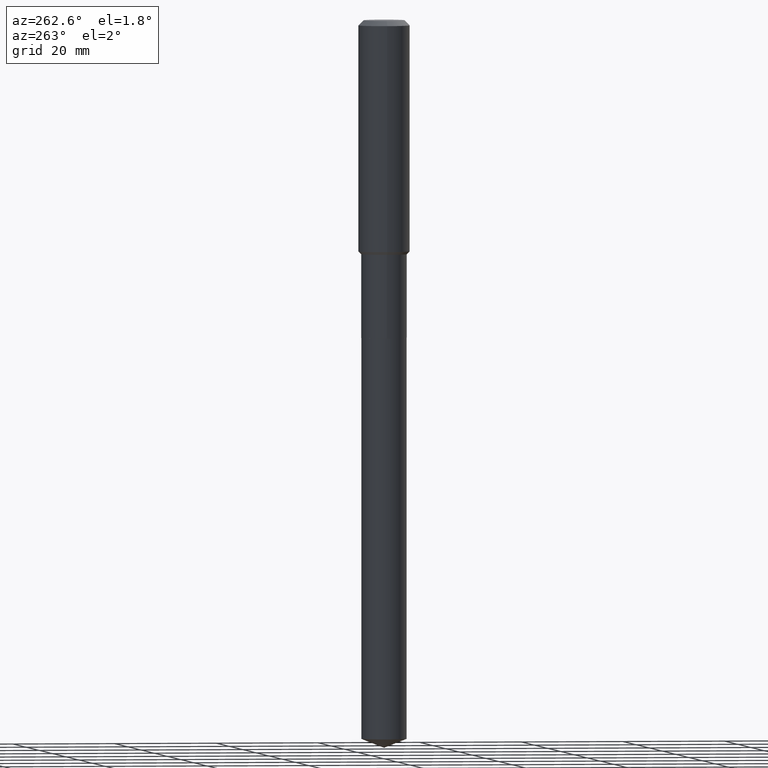
[diagram: clean part render]
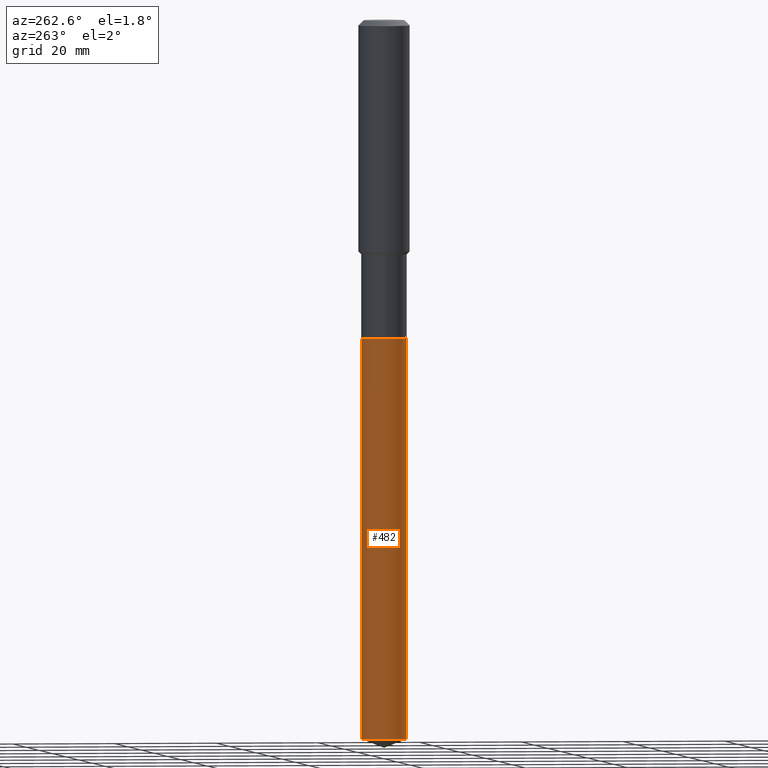
[diagram: same view with one face highlighted and labeled with its STEP entity id]
A machine part, auxiliary view. The second image highlights one B-rep face of the part: STEP entity #482.
In plain terms, the highlighted cylindrical surface (edge-blend (fillet) strip) has radius 4.4501 mm, axis along (-0, 0, 1).
Its self-contained STEP definition (entity closure, byte-faithful):
#1 = CARTESIAN_POINT ( 'NONE',  ( 1.244870873051829791E-15, 0.1751999999999806212, -5.521486884672262896 ) ) ;
#3 = VERTEX_POINT ( 'NONE', #216 ) ;
#15 = CIRCLE ( 'NONE', #418, 0.1751999999999999946 ) ;
#19 = CYLINDRICAL_SURFACE ( 'NONE', #156, 0.1751999999999999946 ) ;
#36 = EDGE_CURVE ( 'NONE', #469, #385, #15, .T. ) ;
#38 = ORIENTED_EDGE ( 'NONE', *, *, #415, .F. ) ;
#46 = CARTESIAN_POINT ( 'NONE',  ( 1.244870873051754849E-15, 0.1751999999999914459, -2.440899999999999626 ) ) ;
#56 = CARTESIAN_POINT ( 'NONE',  ( 5.969144809017297917E-29, -8.522356799982231388E-15, -2.440899999999999181 ) ) ;
#68 = LINE ( 'NONE', #109, #78 ) ;
#75 = EDGE_LOOP ( 'NONE', ( #38, #164, #452, #299 ) ) ;
#76 = LINE ( 'NONE', #46, #392 ) ;
#78 = VECTOR ( 'NONE', #330, 39.37007874015748143 ) ;
#84 = DIRECTION ( 'NONE',  ( -2.445428369358333970E-29, 3.491539246680648506E-15, 1.000000000000000000 ) ) ;
#109 = CARTESIAN_POINT ( 'NONE',  ( -1.223415061130574121E-15, -0.1752000000000085156, -2.440899999999998737 ) ) ;
#111 = DIRECTION ( 'NONE',  ( -2.445428369358333970E-29, 3.491539246680648506E-15, 1.000000000000000000 ) ) ;
#156 = AXIS2_PLACEMENT_3D ( 'NONE', #56, #287, #319 ) ;
#164 = ORIENTED_EDGE ( 'NONE', *, *, #380, .T. ) ;
#197 = AXIS2_PLACEMENT_3D ( 'NONE', #304, #84, #238 ) ;
#216 = CARTESIAN_POINT ( 'NONE',  ( -1.223415061130498390E-15, -0.1752000000000192015, -5.521486884672260231 ) ) ;
#230 = CARTESIAN_POINT ( 'NONE',  ( 1.244870873051830580E-15, 0.1751999999999914459, -2.440899999999999626 ) ) ;
#238 = DIRECTION ( 'NONE',  ( -6.982962677686265133E-15, -1.000000000000000000, 6.237095875945806629E-15 ) ) ;
#241 = EDGE_CURVE ( 'NONE', #3, #385, #68, .T. ) ;
#244 = DIRECTION ( 'NONE',  ( -2.445428369358333970E-29, 3.491539246680648506E-15, 1.000000000000000000 ) ) ;
#287 = DIRECTION ( 'NONE',  ( -2.445428369358333970E-29, 3.491539246680648506E-15, 1.000000000000000000 ) ) ;
#299 = ORIENTED_EDGE ( 'NONE', *, *, #36, .F. ) ;
#304 = CARTESIAN_POINT ( 'NONE',  ( 1.350249937106805786E-28, -1.927834681062510951E-14, -5.521486884672262008 ) ) ;
#319 = DIRECTION ( 'NONE',  ( -6.982962677686265133E-15, -1.000000000000000000, 3.118547937972903315E-15 ) ) ;
#321 = VERTEX_POINT ( 'NONE', #1 ) ;
#330 = DIRECTION ( 'NONE',  ( -2.445428369358333970E-29, 3.491539246680648506E-15, 1.000000000000000000 ) ) ;
#332 = CIRCLE ( 'NONE', #197, 0.1751999999999999946 ) ;
#343 = CARTESIAN_POINT ( 'NONE',  ( -1.223415061130574121E-15, -0.1752000000000085156, -2.440899999999998737 ) ) ;
#380 = EDGE_CURVE ( 'NONE', #321, #3, #332, .T. ) ;
#384 = CARTESIAN_POINT ( 'NONE',  ( 5.969144809017297917E-29, -8.522356799982231388E-15, -2.440899999999999181 ) ) ;
#385 = VERTEX_POINT ( 'NONE', #343 ) ;
#387 = DIRECTION ( 'NONE',  ( -6.982962677686265133E-15, -1.000000000000000000, 3.118547937972903315E-15 ) ) ;
#388 = FACE_OUTER_BOUND ( 'NONE', #75, .T. ) ;
#392 = VECTOR ( 'NONE', #111, 39.37007874015748143 ) ;
#415 = EDGE_CURVE ( 'NONE', #321, #469, #76, .T. ) ;
#418 = AXIS2_PLACEMENT_3D ( 'NONE', #384, #244, #387 ) ;
#452 = ORIENTED_EDGE ( 'NONE', *, *, #241, .T. ) ;
#469 = VERTEX_POINT ( 'NONE', #230 ) ;
#482 = ADVANCED_FACE ( 'NONE', ( #388 ), #19, .T. ) ;